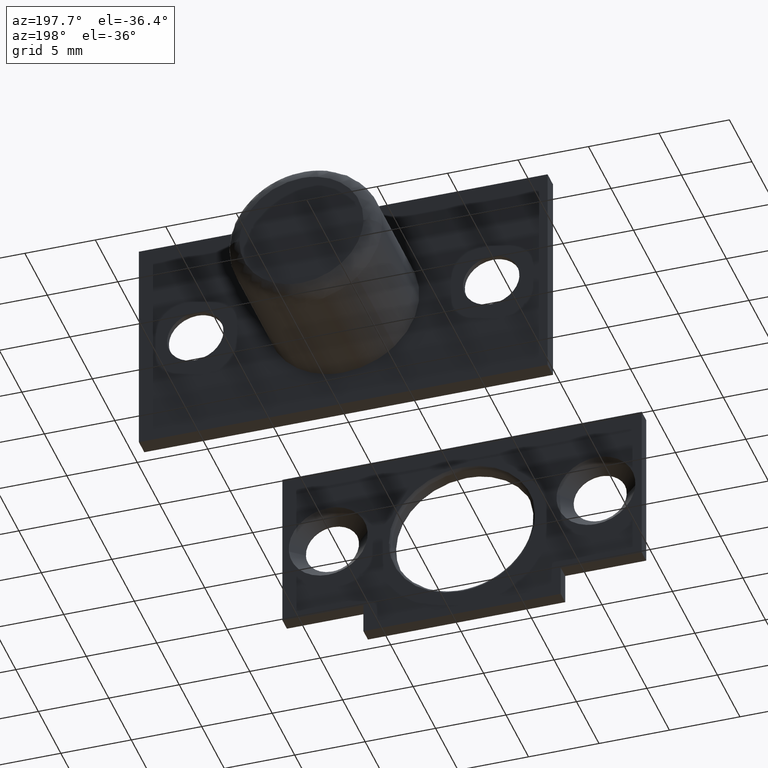
[diagram: clean part render]
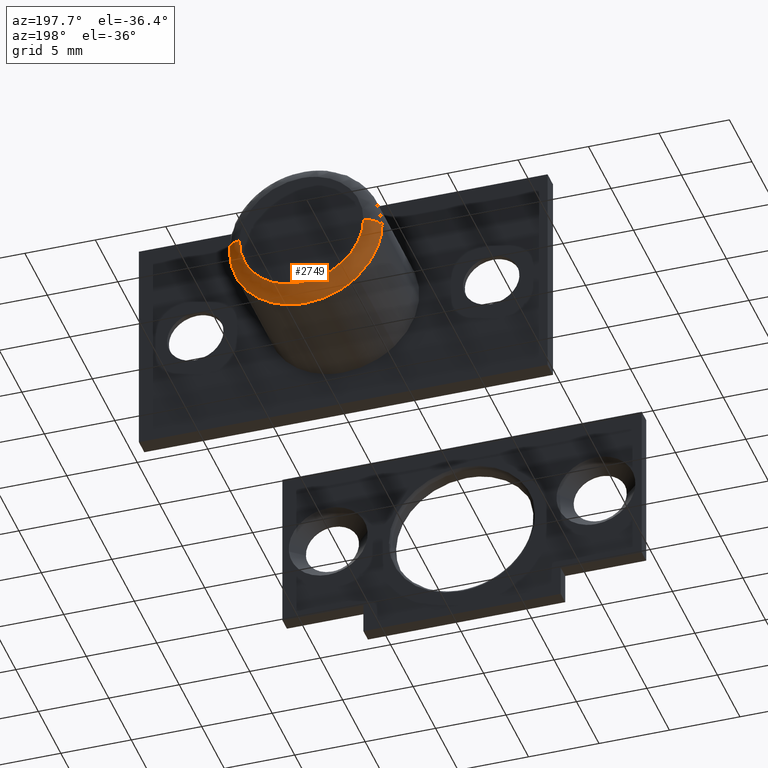
[diagram: same view with one face highlighted and labeled with its STEP entity id]
A machine part, auxiliary view. The second image highlights one B-rep face of the part: STEP entity #2749.
In plain terms, the highlighted face is a freeform B-spline surface patch.
Its self-contained STEP definition (entity closure, byte-faithful):
#2360=CARTESIAN_POINT('',(-3.648187580205401,9.500000000152436,-3.981298554409539));
#2361=VERTEX_POINT('',#2360);
#2367=CARTESIAN_POINT('',(0.0,9.500000000000000,-5.400001000000002));
#2368=VERTEX_POINT('',#2367);
#2369=CARTESIAN_POINT('',(0.0,9.500000000000000,-5.400001000000002));
#2370=CARTESIAN_POINT('',(-2.099945202813427,9.500000000000000,-5.400001000000003));
#2371=CARTESIAN_POINT('',(-3.648187580205401,9.500000000152436,-3.981298554409539));
#2379=(BOUNDED_CURVE()B_SPLINE_CURVE(2,(#2369,#2370,#2371),.UNSPECIFIED.,.F.,.U.)B_SPLINE_CURVE_WITH_KNOTS((3,3),(0.500000000000000,0.618415192665089),.UNSPECIFIED.)CURVE()GEOMETRIC_REPRESENTATION_ITEM()RATIONAL_B_SPLINE_CURVE((1.0,0.861267972255628,0.853959782864602))REPRESENTATION_ITEM(''));
#2380=EDGE_CURVE('',#2368,#2361,#2379,.T.);
#2382=CARTESIAN_POINT('',(5.398295621806994,9.500000000565605,0.135702540803124));
#2383=VERTEX_POINT('',#2382);
#2384=CARTESIAN_POINT('',(5.398295621806994,9.500000000565605,0.135702540803124));
#2385=CARTESIAN_POINT('',(5.400001000000000,9.500000000000000,0.067861986312420));
#2386=CARTESIAN_POINT('',(5.400001000000000,9.500000000000000,-2.847210E-015));
#2387=CARTESIAN_POINT('',(5.400001000000000,9.500000000000000,-5.400001000000002));
#2388=CARTESIAN_POINT('',(0.0,9.500000000000000,-5.400001000000002));
#2396=(BOUNDED_CURVE()B_SPLINE_CURVE(2,(#2384,#2385,#2386,#2387,#2388),.UNSPECIFIED.,.F.,.U.)B_SPLINE_CURVE_WITH_KNOTS((3,2,3),(0.245579891751720,0.250000000000000,0.500000000000000),.UNSPECIFIED.)CURVE()GEOMETRIC_REPRESENTATION_ITEM()RATIONAL_B_SPLINE_CURVE((0.989826157640693,0.994821521070630,1.0,0.707106781186547,1.0))REPRESENTATION_ITEM(''));
#2397=EDGE_CURVE('',#2383,#2368,#2396,.T.);
#2471=CARTESIAN_POINT('',(-5.398295621806994,9.500000000565605,-0.135702540803128));
#2472=VERTEX_POINT('',#2471);
#2488=CARTESIAN_POINT('',(-3.648187580205402,9.500000000152436,-3.981298554409539));
#2489=CARTESIAN_POINT('',(-5.340609427207808,9.500000000319050,-2.430479994930143));
#2490=CARTESIAN_POINT('',(-5.398295621806994,9.500000000565605,-0.135702540803128));
#2498=(BOUNDED_CURVE()B_SPLINE_CURVE(2,(#2488,#2489,#2490),.UNSPECIFIED.,.F.,.U.)B_SPLINE_CURVE_WITH_KNOTS((3,3),(0.618415192665088,0.745579891751719),.UNSPECIFIED.)CURVE()GEOMETRIC_REPRESENTATION_ITEM()RATIONAL_B_SPLINE_CURVE((0.853959782864602,0.846111603219221,0.989826157640692))REPRESENTATION_ITEM(''));
#2499=EDGE_CURVE('',#2361,#2472,#2498,.T.);
#2661=CARTESIAN_POINT('',(5.395862697820052,9.430275812656380,0.135641381597296));
#2662=CARTESIAN_POINT('',(5.531504079417352,9.430275812656380,-5.260221316222755));
#2663=CARTESIAN_POINT('',(0.135641381597301,9.430275812656380,-5.395862697820055));
#2664=CARTESIAN_POINT('',(-5.260221316222752,9.430275812656380,-5.531504079417355));
#2665=CARTESIAN_POINT('',(-5.395862697820052,9.430275812656380,-0.135641381597304));
#2666=CARTESIAN_POINT('',(5.476010316573635,10.577335749656749,0.137656135186905));
#2667=CARTESIAN_POINT('',(5.613666451760546,10.577335749656751,-5.338354181386730));
#2668=CARTESIAN_POINT('',(0.137656135186910,10.577335749656749,-5.476010316573639));
#2669=CARTESIAN_POINT('',(-5.338354181386729,10.577335749656751,-5.613666451760548));
#2670=CARTESIAN_POINT('',(-5.476010316573635,10.577335749656749,-0.137656135186912));
#2671=CARTESIAN_POINT('',(4.329282701616886,10.497592346482175,0.108829657064816));
#2672=CARTESIAN_POINT('',(4.438112358681705,10.497592346482175,-4.220453044552069));
#2673=CARTESIAN_POINT('',(0.108829657064820,10.497592346482175,-4.329282701616886));
#2674=CARTESIAN_POINT('',(-4.220453044552067,10.497592346482175,-4.438112358681708));
#2675=CARTESIAN_POINT('',(-4.329282701616886,10.497592346482175,-0.108829657064822));
#2683=(BOUNDED_SURFACE()B_SPLINE_SURFACE(2,2,((#2661,#2666,#2671),(#2662,#2667,#2672),(#2663,#2668,#2673),(#2664,#2669,#2674),(#2665,#2670,#2675)),.UNSPECIFIED.,.F.,.F.,.U.)B_SPLINE_SURFACE_WITH_KNOTS((3,2,3),(3,3),(0.0,8.942982330219715,17.885964660439431),(0.0,1.822370399371875),.UNSPECIFIED.)GEOMETRIC_REPRESENTATION_ITEM()RATIONAL_B_SPLINE_SURFACE(((0.910892942541887,0.599412921378678,0.915966645999969),(0.644098576606337,0.423848941437702,0.647686226727276),(0.910892942541887,0.599412921378678,0.915966645999969),(0.644098576606337,0.423848941437702,0.647686226727276),(0.910892942541887,0.599412921378678,0.915966645999969)))REPRESENTATION_ITEM('')SURFACE());
#2684=ORIENTED_EDGE('',*,*,#2397,.T.);
#2685=ORIENTED_EDGE('',*,*,#2380,.T.);
#2686=ORIENTED_EDGE('',*,*,#2499,.T.);
#2687=CARTESIAN_POINT('',(-4.398611447640397,10.500000000000000,-0.110572447457991));
#2688=VERTEX_POINT('',#2687);
#2689=CARTESIAN_POINT('',(-5.398295621806994,9.500000000565605,-0.135702540803128));
#2690=CARTESIAN_POINT('',(-5.398295620683151,10.499999969670689,-0.135702540495693));
#2691=CARTESIAN_POINT('',(-4.398611447640398,10.500000000000000,-0.110572447457991));
#2699=(BOUNDED_CURVE()B_SPLINE_CURVE(2,(#2689,#2690,#2691),.UNSPECIFIED.,.F.,.U.)B_SPLINE_CURVE_WITH_KNOTS((3,3),(-1.723441280820086,-0.263586910317547),.UNSPECIFIED.)CURVE()GEOMETRIC_REPRESENTATION_ITEM()RATIONAL_B_SPLINE_CURVE((0.883897566728178,0.626638732978030,0.888510397801046))REPRESENTATION_ITEM(''));
#2700=EDGE_CURVE('',#2472,#2688,#2699,.T.);
#2701=ORIENTED_EDGE('',*,*,#2700,.T.);
#2702=CARTESIAN_POINT('',(0.0,10.500000000000000,-4.400001000000002));
#2703=VERTEX_POINT('',#2702);
#2704=CARTESIAN_POINT('',(0.0,10.500000000000000,-4.400001000000002));
#2705=CARTESIAN_POINT('',(-4.290783626477108,10.500000000000000,-4.400001000000002));
#2706=CARTESIAN_POINT('',(-4.398611447640397,10.499999999999996,-0.110572447457991));
#2714=(BOUNDED_CURVE()B_SPLINE_CURVE(2,(#2704,#2705,#2706),.UNSPECIFIED.,.F.,.U.)B_SPLINE_CURVE_WITH_KNOTS((3,3),(0.500000000000000,0.745579891610994),.UNSPECIFIED.)CURVE()GEOMETRIC_REPRESENTATION_ITEM()RATIONAL_B_SPLINE_CURVE((1.0,0.712285260280789,0.989826157322612))REPRESENTATION_ITEM(''));
#2715=EDGE_CURVE('',#2703,#2688,#2714,.T.);
#2716=ORIENTED_EDGE('',*,*,#2715,.F.);
#2717=CARTESIAN_POINT('',(4.398611447640397,10.500000000000000,0.110572447457986));
#2718=VERTEX_POINT('',#2717);
#2719=CARTESIAN_POINT('',(4.398611447640397,10.500000000000005,0.110572447457986));
#2720=CARTESIAN_POINT('',(4.400001000000000,10.500000000000002,0.055294955906964));
#2721=CARTESIAN_POINT('',(4.400001000000000,10.500000000000000,-2.847210E-015));
#2722=CARTESIAN_POINT('',(4.400000999999999,10.500000000000002,-4.400001000000002));
#2723=CARTESIAN_POINT('',(0.0,10.500000000000000,-4.400001000000002));
#2731=(BOUNDED_CURVE()B_SPLINE_CURVE(2,(#2719,#2720,#2721,#2722,#2723),.UNSPECIFIED.,.F.,.U.)B_SPLINE_CURVE_WITH_KNOTS((3,2,3),(0.245579891610995,0.250000000000000,0.500000000000000),.UNSPECIFIED.)CURVE()GEOMETRIC_REPRESENTATION_ITEM()RATIONAL_B_SPLINE_CURVE((0.989826157322614,0.994821520905760,1.0,0.707106781186548,1.0))REPRESENTATION_ITEM(''));
#2732=EDGE_CURVE('',#2718,#2703,#2731,.T.);
#2733=ORIENTED_EDGE('',*,*,#2732,.F.);
#2734=CARTESIAN_POINT('',(5.398295621806994,9.500000000565605,0.135702540803124));
#2735=CARTESIAN_POINT('',(5.398295620683154,10.499999969670688,0.135702540495688));
#2736=CARTESIAN_POINT('',(4.398611447640398,10.500000000000000,0.110572447457986));
#2744=(BOUNDED_CURVE()B_SPLINE_CURVE(2,(#2734,#2735,#2736),.UNSPECIFIED.,.F.,.U.)B_SPLINE_CURVE_WITH_KNOTS((3,3),(-1.723441280820087,-0.263586910317547),.UNSPECIFIED.)CURVE()GEOMETRIC_REPRESENTATION_ITEM()RATIONAL_B_SPLINE_CURVE((0.883897566728178,0.626638732978030,0.888510397801046))REPRESENTATION_ITEM(''));
#2745=EDGE_CURVE('',#2383,#2718,#2744,.T.);
#2746=ORIENTED_EDGE('',*,*,#2745,.F.);
#2747=EDGE_LOOP('',(#2684,#2685,#2686,#2701,#2716,#2733,#2746));
#2748=FACE_OUTER_BOUND('',#2747,.T.);
#2749=ADVANCED_FACE('',(#2748),#2683,.T.);